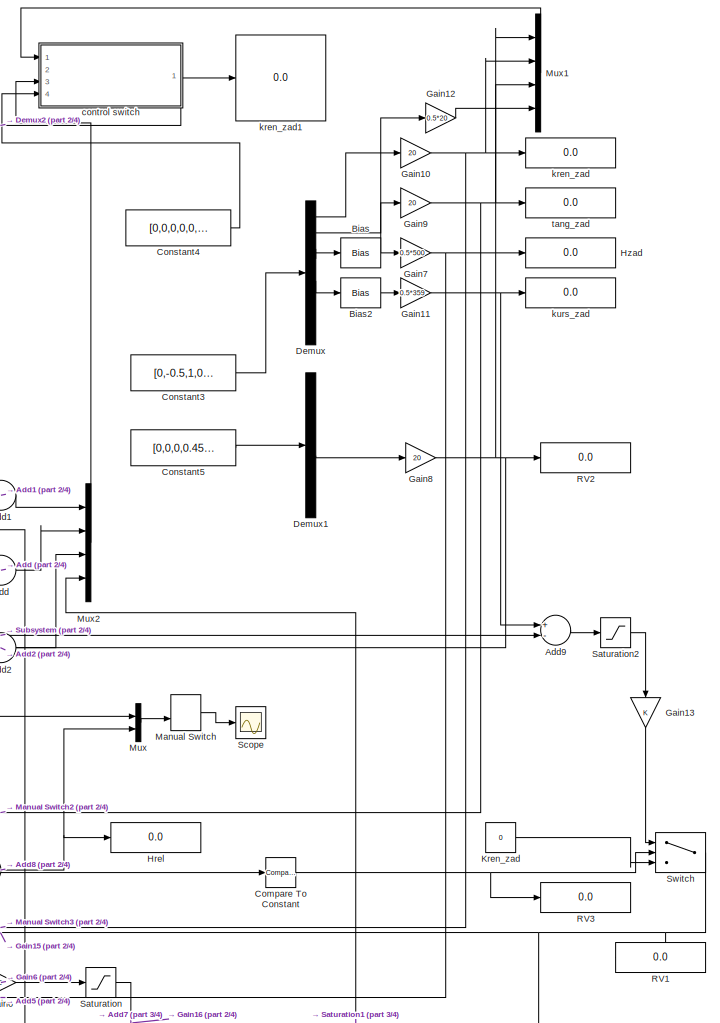
[diagram: root canvas - part 1/4, middle right region]
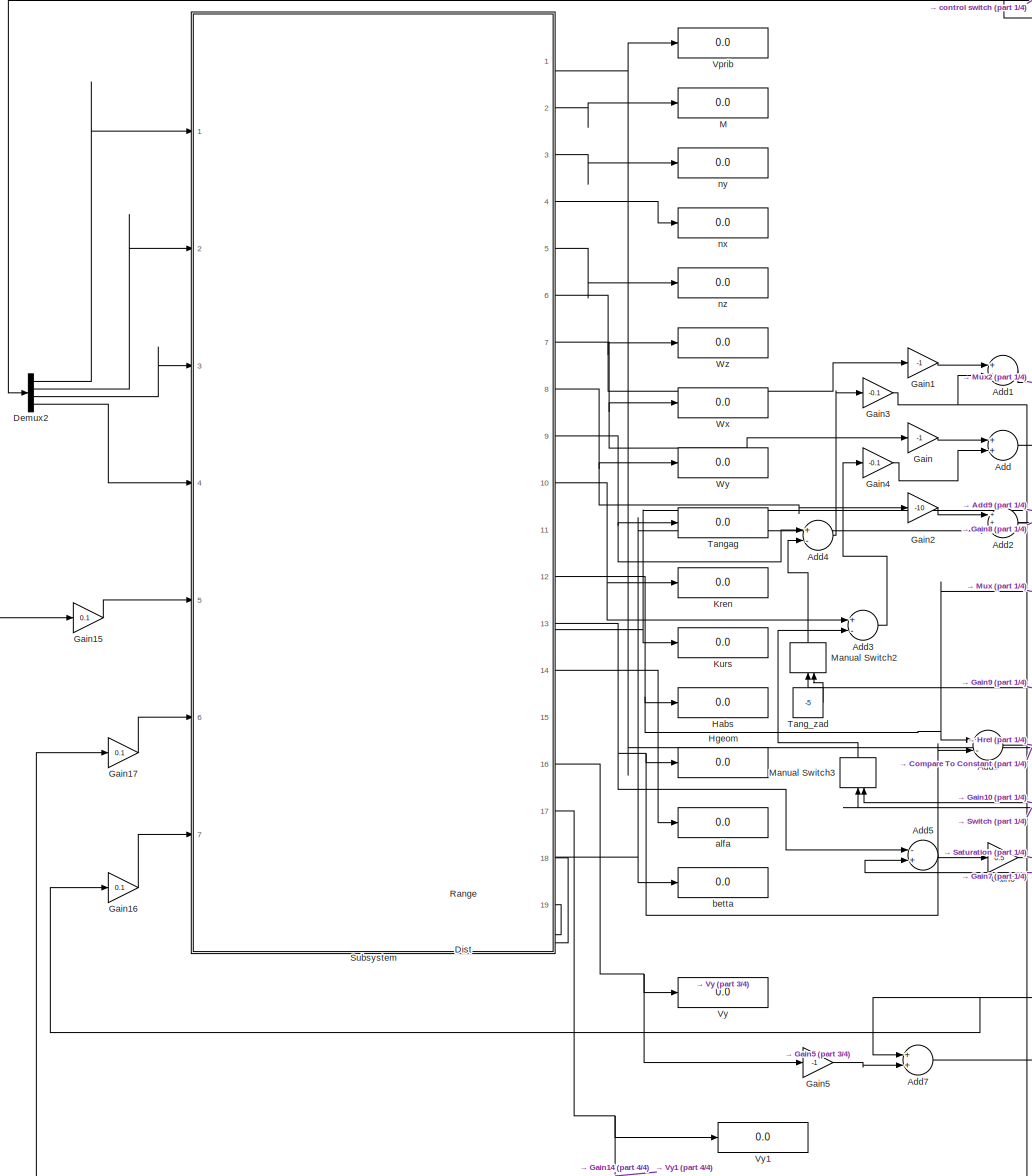
[diagram: root canvas - part 2/4, left side, full height]
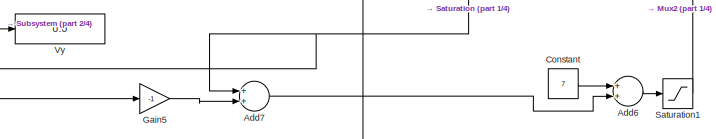
[diagram: root canvas - part 3/4, bottom center region]
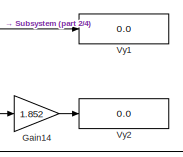
[diagram: root canvas - part 4/4, bottom center region]
MODEL slx_5bebb21199fe
KIND model
BLOCK [Sum] Add
  InputSameDT = off
  OutDataTypeStr = Inherit: Inherit via internal rule
  Ports = [2, 1]
  SaturateOnIntegerOverflow = off
BLOCK [Sum] Add1
  InputSameDT = off
  OutDataTypeStr = Inherit: Inherit via internal rule
  Ports = [2, 1]
  SaturateOnIntegerOverflow = off
BLOCK [Sum] Add2
  InputSameDT = off
  Inputs = ++-
  OutDataTypeStr = Inherit: Inherit via internal rule
  Ports = [3, 1]
  SaturateOnIntegerOverflow = off
BLOCK [Sum] Add3
  InputSameDT = off
  Inputs = +-
  OutDataTypeStr = Inherit: Inherit via internal rule
  Ports = [2, 1]
  SaturateOnIntegerOverflow = off
BLOCK [Sum] Add4
  InputSameDT = off
  Inputs = +-
  OutDataTypeStr = Inherit: Inherit via internal rule
  Ports = [2, 1]
  SaturateOnIntegerOverflow = off
BLOCK [Sum] Add5
  InputSameDT = off
  Inputs = -+
  OutDataTypeStr = Inherit: Inherit via internal rule
  Ports = [2, 1]
  SaturateOnIntegerOverflow = off
BLOCK [Sum] Add6
  InputSameDT = off
  OutDataTypeStr = Inherit: Inherit via internal rule
  Ports = [2, 1]
  SaturateOnIntegerOverflow = off
BLOCK [Sum] Add7
  InputSameDT = off
  OutDataTypeStr = Inherit: Inherit via internal rule
  Ports = [2, 1]
  SaturateOnIntegerOverflow = off
BLOCK [Sum] Add8
  InputSameDT = off
  Inputs = +-
  OutDataTypeStr = Inherit: Inherit via internal rule
  Ports = [2, 1]
  SaturateOnIntegerOverflow = off
BLOCK [Sum] Add9
  InputSameDT = off
  Inputs = +-
  OutDataTypeStr = Inherit: Inherit via internal rule
  Ports = [2, 1]
  SaturateOnIntegerOverflow = off
BLOCK [Bias] Bias
  Bias = 1
  SaturateOnIntegerOverflow = off
BLOCK [Bias] Bias2
  Bias = 1
  SaturateOnIntegerOverflow = off
BLOCK [Reference] Compare To Constant  REF=simulink/Logic and Bit
Operations/Compare
To Constant
  OutDataTypeStr = uint8
  Ports = [1, 1]
  SourceBlock = simulink/Logic and Bit\nOperations/Compare\nTo Constant
  SourceType = Compare To Constant
  ZeroCross = on
  const = 75
  relop = >
BLOCK [Constant] Constant
  Value = 7
BLOCK [Constant] Constant3
  Value = [0,-0.5,1,0,-0.5,0,0,0]
BLOCK [Constant] Constant4
  Value = [0,0,0,0,0,0,0,0,0,0,0,0,0,0,0,0,0,0,0,0,0,0,0,0,0,0,0,0,0,0,0,0,0,0,0,0,0,0,0]
BLOCK [Constant] Constant5
  Value = [0,0,0,0.45,0,0]
BLOCK [Demux] Demux
  DisplayOption = bar
  Outputs = 8
  Ports = [1, 8]
BLOCK [Demux] Demux1
  DisplayOption = bar
  Outputs = 6
  Ports = [1, 6]
BLOCK [Demux] Demux2
  DisplayOption = bar
  Ports = [1, 4]
BLOCK [Display] Dist
  Decimation = 1
  Lockdown = off
  Ports = [1]
BLOCK [Gain] Gain
  Gain = -1
  OutDataTypeStr = Inherit: Inherit via internal rule
  ParamDataTypeStr = Inherit: Inherit via internal rule
  SaturateOnIntegerOverflow = off
BLOCK [Gain] Gain1
  Gain = -1
  OutDataTypeStr = Inherit: Inherit via internal rule
  ParamDataTypeStr = Inherit: Inherit via internal rule
  SaturateOnIntegerOverflow = off
BLOCK [Gain] Gain10
  Gain = 20
  OutDataTypeStr = Inherit: Inherit via internal rule
  ParamDataTypeStr = Inherit: Inherit via internal rule
  SaturateOnIntegerOverflow = off
BLOCK [Gain] Gain11
  Gain = 0.5*359
  OutDataTypeStr = Inherit: Inherit via internal rule
  ParamDataTypeStr = Inherit: Inherit via internal rule
  SaturateOnIntegerOverflow = off
BLOCK [Gain] Gain12
  Gain = 0.5*20
  OutDataTypeStr = Inherit: Inherit via internal rule
  ParamDataTypeStr = Inherit: Inherit via internal rule
  SaturateOnIntegerOverflow = off
BLOCK [Gain] Gain13
  OutDataTypeStr = Inherit: Inherit via internal rule
  ParamDataTypeStr = Inherit: Inherit via internal rule
  SaturateOnIntegerOverflow = off
BLOCK [Gain] Gain14
  Gain = 1.852
  OutDataTypeStr = Inherit: Inherit via internal rule
  ParamDataTypeStr = Inherit: Inherit via internal rule
  SaturateOnIntegerOverflow = off
BLOCK [Gain] Gain15
  Gain = 0.1
  OutDataTypeStr = Inherit: Inherit via internal rule
  ParamDataTypeStr = Inherit: Inherit via internal rule
  SaturateOnIntegerOverflow = off
BLOCK [Gain] Gain16
  Gain = 0.1
  OutDataTypeStr = Inherit: Inherit via internal rule
  ParamDataTypeStr = Inherit: Inherit via internal rule
  SaturateOnIntegerOverflow = off
BLOCK [Gain] Gain17
  Gain = 0.1
  OutDataTypeStr = Inherit: Inherit via internal rule
  ParamDataTypeStr = Inherit: Inherit via internal rule
  SaturateOnIntegerOverflow = off
BLOCK [Gain] Gain2
  Gain = -10
  OutDataTypeStr = Inherit: Inherit via internal rule
  ParamDataTypeStr = Inherit: Inherit via internal rule
  SaturateOnIntegerOverflow = off
BLOCK [Gain] Gain3
  Gain = -0.1
  OutDataTypeStr = Inherit: Inherit via internal rule
  ParamDataTypeStr = Inherit: Inherit via internal rule
  SaturateOnIntegerOverflow = off
BLOCK [Gain] Gain4
  Gain = -0.1
  OutDataTypeStr = Inherit: Inherit via internal rule
  ParamDataTypeStr = Inherit: Inherit via internal rule
  SaturateOnIntegerOverflow = off
BLOCK [Gain] Gain5
  Gain = -1
  OutDataTypeStr = Inherit: Inherit via internal rule
  ParamDataTypeStr = Inherit: Inherit via internal rule
  SaturateOnIntegerOverflow = off
BLOCK [Gain] Gain6
  Gain = 0.5
  OutDataTypeStr = Inherit: Inherit via internal rule
  ParamDataTypeStr = Inherit: Inherit via internal rule
  SaturateOnIntegerOverflow = off
BLOCK [Gain] Gain7
  Gain = 0.5*500
  OutDataTypeStr = Inherit: Inherit via internal rule
  ParamDataTypeStr = Inherit: Inherit via internal rule
  SaturateOnIntegerOverflow = off
BLOCK [Gain] Gain8
  Gain = 20
  OutDataTypeStr = Inherit: Inherit via internal rule
  ParamDataTypeStr = Inherit: Inherit via internal rule
  SaturateOnIntegerOverflow = off
BLOCK [Gain] Gain9
  Gain = 20
  OutDataTypeStr = Inherit: Inherit via internal rule
  ParamDataTypeStr = Inherit: Inherit via internal rule
  SaturateOnIntegerOverflow = off
BLOCK [Display] Habs
  Decimation = 1
  Lockdown = off
  Ports = [1]
BLOCK [Display] Hgeom
  Decimation = 1
  Lockdown = off
  Ports = [1]
BLOCK [Display] Hrel
  Decimation = 1
  Lockdown = off
  Ports = [1]
BLOCK [Display] Kren
  Decimation = 1
  Lockdown = off
  Ports = [1]
BLOCK [Constant] Kren_zad
  Value = 0
BLOCK [Display] Kurs
  Decimation = 1
  Lockdown = off
  Ports = [1]
BLOCK [Display] M
  Decimation = 1
  Lockdown = off
  Ports = [1]
BLOCK [ManualSwitch] Manual Switch
BLOCK [ManualSwitch] Manual Switch2
  CurrentSetting = 0
BLOCK [ManualSwitch] Manual Switch3
BLOCK [Mux] Mux
  DisplayOption = bar
  Inputs = 2
  Ports = [2, 1]
BLOCK [Mux] Mux1
  DisplayOption = bar
  Ports = [4, 1]
BLOCK [Mux] Mux2
  DisplayOption = bar
  Ports = [4, 1]
BLOCK [Display] RV1
  Decimation = 1
  Lockdown = off
  Ports = [1]
BLOCK [Display] RV2
  Decimation = 1
  Lockdown = off
  Ports = [1]
BLOCK [Display] RV3
  Decimation = 1
  Lockdown = off
  Ports = [1]
BLOCK [Display] Range
  Decimation = 1
  Lockdown = off
  Ports = [1]
BLOCK [Saturate] Saturation
  InputPortMap = u0
  LowerLimit = -10
  Ports = [1, 1]
  UpperLimit = 10
BLOCK [Saturate] Saturation1
  InputPortMap = u0
  LowerLimit = 0
  Ports = [1, 1]
  UpperLimit = 18
BLOCK [Saturate] Saturation2
  InputPortMap = u0
  LowerLimit = -30
  Ports = [1, 1]
  UpperLimit = 30
BLOCK [Scope] Scope
  DataFormat = StructureWithTime
  Floating = off
  LimitDataPoints = off
  MaxDataPoints = 500000
  NumInputPorts = 1
  Ports = [1]
  SampleTime = 0
  ShowLegends = off
  TimeRange = 1200
  YMax = 925
  YMin = 575
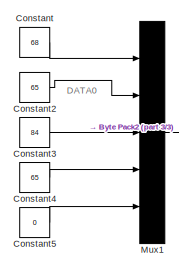
[diagram: Subsystem - part 1/3, top left region]
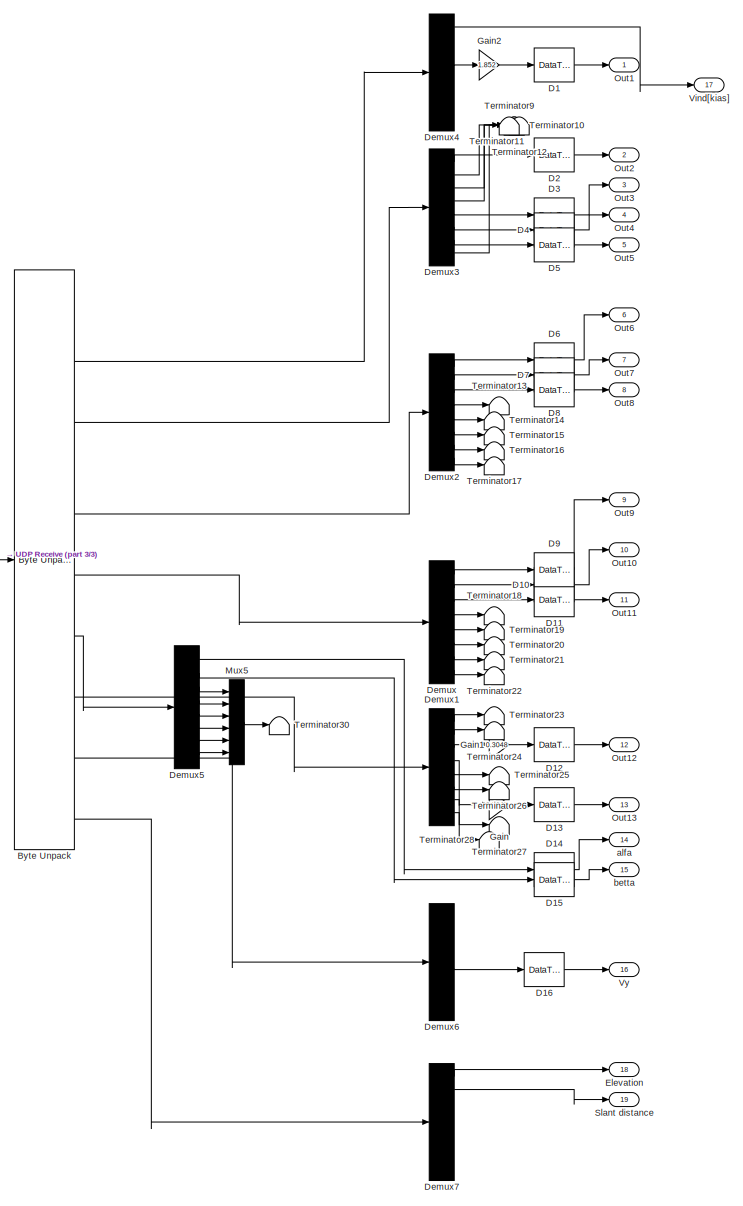
[diagram: Subsystem - part 2/3, right side, full height]
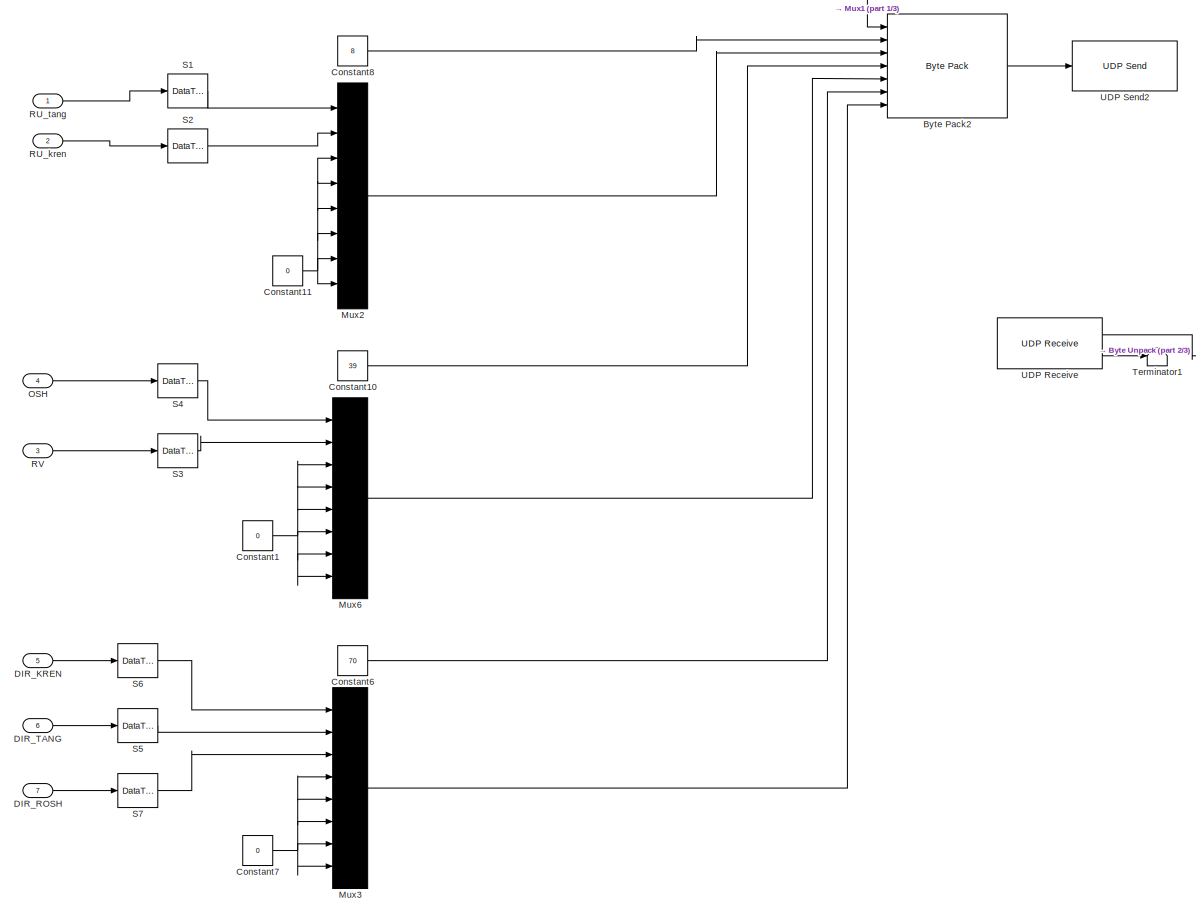
[diagram: Subsystem - part 3/3, middle left region]
BLOCK [SubSystem] Subsystem
  FunctionWithSeparateData = off
  MaskHideContents = off
  MinAlgLoopOccurrences = off
  Opaque = off
  Ports = [7, 19]
  PropExecContextOutsideSubsystem = off
  RTWSystemCode = Auto
  RequestExecContextInheritance = off
BLOCK [Reference] Subsystem/Byte Pack2  REF=etargetslib/Byte Pack
  Ports = [7, 1]
  SourceBlock = etargetslib/Byte Pack
  SourceType = Byte pack
  byteAlign = 1
  datatypes = {'int8','int32','single','int32','single','int32','single'}
BLOCK [Reference] Subsystem/Byte Unpack  REF=etargetslib/Byte Unpack
  Ports = [1, 18]
  SourceBlock = etargetslib/Byte Unpack
  SourceType = Byte Unpack
  byteAlign = 1
  datatypes = {'int8','int32','single','int32','single','int8','int32','single','int32','single','int32','single','int32','single','int32','single','int32','single'}
  dimensions = {[5+3*36],[1],[8],[1],[8],[12*36],[1],[8],[1],[8],[1],[8],[1],[8],[1],[8],[1],[8]}
BLOCK [Constant] Subsystem/Constant
  OutDataTypeStr = int8
  Value = 68
BLOCK [Constant] Subsystem/Constant1
  LockScale = on
  OutDataTypeStr = single
  Value = 0
BLOCK [Constant] Subsystem/Constant10
  LockScale = on
  OutDataTypeStr = int32
  Value = 39
BLOCK [Constant] Subsystem/Constant11
  LockScale = on
  OutDataTypeStr = single
  Value = 0
BLOCK [Constant] Subsystem/Constant2
  LockScale = on
  OutDataTypeStr = int8
  Value = 65
BLOCK [Constant] Subsystem/Constant3
  OutDataTypeStr = int8
  Value = 84
BLOCK [Constant] Subsystem/Constant4
  LockScale = on
  OutDataTypeStr = int8
  Value = 65
BLOCK [Constant] Subsystem/Constant5
  LockScale = on
  OutDataTypeStr = int8
  Value = 0
BLOCK [Constant] Subsystem/Constant6
  LockScale = on
  OutDataTypeStr = int32
  Value = 70
BLOCK [Constant] Subsystem/Constant7
  LockScale = on
  OutDataTypeStr = single
  Value = 0
BLOCK [Constant] Subsystem/Constant8
  LockScale = on
  OutDataTypeStr = int32
  Value = 8
BLOCK [DataTypeConversion] Subsystem/D1
  OutDataTypeStr = double
  RndMeth = Floor
  SaturateOnIntegerOverflow = off
BLOCK [DataTypeConversion] Subsystem/D10
  OutDataTypeStr = double
  RndMeth = Floor
  SaturateOnIntegerOverflow = off
BLOCK [DataTypeConversion] Subsystem/D11
  OutDataTypeStr = double
  RndMeth = Floor
  SaturateOnIntegerOverflow = off
BLOCK [DataTypeConversion] Subsystem/D12
  OutDataTypeStr = double
  RndMeth = Floor
  SaturateOnIntegerOverflow = off
BLOCK [DataTypeConversion] Subsystem/D13
  OutDataTypeStr = double
  RndMeth = Floor
  SaturateOnIntegerOverflow = off
BLOCK [DataTypeConversion] Subsystem/D14
  OutDataTypeStr = double
  RndMeth = Floor
  SaturateOnIntegerOverflow = off
BLOCK [DataTypeConversion] Subsystem/D15
  OutDataTypeStr = double
  RndMeth = Floor
  SaturateOnIntegerOverflow = off
BLOCK [DataTypeConversion] Subsystem/D16
  OutDataTypeStr = double
  RndMeth = Floor
  SaturateOnIntegerOverflow = off
BLOCK [DataTypeConversion] Subsystem/D2
  OutDataTypeStr = double
  RndMeth = Floor
  SaturateOnIntegerOverflow = off
BLOCK [DataTypeConversion] Subsystem/D3
  OutDataTypeStr = double
  RndMeth = Floor
  SaturateOnIntegerOverflow = off
BLOCK [DataTypeConversion] Subsystem/D4
  OutDataTypeStr = double
  RndMeth = Floor
  SaturateOnIntegerOverflow = off
BLOCK [DataTypeConversion] Subsystem/D5
  OutDataTypeStr = double
  RndMeth = Floor
  SaturateOnIntegerOverflow = off
BLOCK [DataTypeConversion] Subsystem/D6
  OutDataTypeStr = double
  RndMeth = Floor
  SaturateOnIntegerOverflow = off
BLOCK [DataTypeConversion] Subsystem/D7
  OutDataTypeStr = double
  RndMeth = Floor
  SaturateOnIntegerOverflow = off
BLOCK [DataTypeConversion] Subsystem/D8
  OutDataTypeStr = double
  RndMeth = Floor
  SaturateOnIntegerOverflow = off
BLOCK [DataTypeConversion] Subsystem/D9
  OutDataTypeStr = double
  RndMeth = Floor
  SaturateOnIntegerOverflow = off
BLOCK [Inport] Subsystem/DIR_KREN
  IconDisplay = Port number
  Port = 5
BLOCK [Inport] Subsystem/DIR_ROSH
  IconDisplay = Port number
  Port = 7
BLOCK [Inport] Subsystem/DIR_TANG
  IconDisplay = Port number
  Port = 6
BLOCK [Demux] Subsystem/Demux
  DisplayOption = bar
  Outputs = 8
  Ports = [1, 8]
BLOCK [Demux] Subsystem/Demux1
  DisplayOption = bar
  Outputs = 8
  Ports = [1, 8]
BLOCK [Demux] Subsystem/Demux2
  DisplayOption = bar
  Outputs = 8
  Ports = [1, 8]
BLOCK [Demux] Subsystem/Demux3
  DisplayOption = bar
  Outputs = 8
  Ports = [1, 8]
BLOCK [Demux] Subsystem/Demux4
  DisplayOption = bar
  Outputs = 8
  Ports = [1, 8]
BLOCK [Demux] Subsystem/Demux5
  DisplayOption = bar
  Outputs = 8
  Ports = [1, 8]
BLOCK [Demux] Subsystem/Demux6
  DisplayOption = bar
  Outputs = 8
  Ports = [1, 8]
BLOCK [Demux] Subsystem/Demux7
  DisplayOption = bar
  Outputs = 8
  Ports = [1, 8]
BLOCK [Outport] Subsystem/Elevation
  IconDisplay = Port number
  Port = 18
BLOCK [Gain] Subsystem/Gain
  Gain = 0.3048
  OutDataTypeStr = Inherit: Inherit via internal rule
  ParamDataTypeStr = Inherit: Inherit via internal rule
  SaturateOnIntegerOverflow = off
BLOCK [Gain] Subsystem/Gain1
  Gain = 0.3048
  OutDataTypeStr = Inherit: Inherit via internal rule
  ParamDataTypeStr = Inherit: Inherit via internal rule
  SaturateOnIntegerOverflow = off
BLOCK [Gain] Subsystem/Gain2
  Gain = 1.852
  OutDataTypeStr = Inherit: Inherit via internal rule
  ParamDataTypeStr = Inherit: Inherit via internal rule
  SaturateOnIntegerOverflow = off
BLOCK [Mux] Subsystem/Mux1
  DisplayOption = bar
  Inputs = 5
  Ports = [5, 1]
BLOCK [Mux] Subsystem/Mux2
  DisplayOption = bar
  Inputs = 8
  Ports = [8, 1]
BLOCK [Mux] Subsystem/Mux3
  DisplayOption = bar
  Inputs = 8
  Ports = [8, 1]
BLOCK [Mux] Subsystem/Mux5
  DisplayOption = bar
  Inputs = 6
  Ports = [6, 1]
BLOCK [Mux] Subsystem/Mux6
  DisplayOption = bar
  Inputs = 8
  Ports = [8, 1]
BLOCK [Inport] Subsystem/OSH
  IconDisplay = Port number
  Port = 4
BLOCK [Outport] Subsystem/Out1
  IconDisplay = Port number
BLOCK [Outport] Subsystem/Out10
  IconDisplay = Port number
  Port = 10
BLOCK [Outport] Subsystem/Out11
  IconDisplay = Port number
  Port = 11
BLOCK [Outport] Subsystem/Out12
  IconDisplay = Port number
  Port = 12
BLOCK [Outport] Subsystem/Out13
  IconDisplay = Port number
  Port = 13
BLOCK [Outport] Subsystem/Out2
  IconDisplay = Port number
  Port = 2
BLOCK [Outport] Subsystem/Out3
  IconDisplay = Port number
  Port = 3
BLOCK [Outport] Subsystem/Out4
  IconDisplay = Port number
  Port = 4
BLOCK [Outport] Subsystem/Out5
  IconDisplay = Port number
  Port = 5
BLOCK [Outport] Subsystem/Out6
  IconDisplay = Port number
  Port = 6
BLOCK [Outport] Subsystem/Out7
  IconDisplay = Port number
  Port = 7
BLOCK [Outport] Subsystem/Out8
  IconDisplay = Port number
  Port = 8
BLOCK [Outport] Subsystem/Out9
  IconDisplay = Port number
  Port = 9
BLOCK [Inport] Subsystem/RU_kren
  IconDisplay = Port number
  Port = 2
BLOCK [Inport] Subsystem/RU_tang
  IconDisplay = Port number
BLOCK [Inport] Subsystem/RV
  IconDisplay = Port number
  Port = 3
BLOCK [DataTypeConversion] Subsystem/S1
  OutDataTypeStr = single
  RndMeth = Floor
  SaturateOnIntegerOverflow = off
BLOCK [DataTypeConversion] Subsystem/S2
  OutDataTypeStr = single
  RndMeth = Floor
  SaturateOnIntegerOverflow = off
BLOCK [DataTypeConversion] Subsystem/S3
  OutDataTypeStr = single
  RndMeth = Floor
  SaturateOnIntegerOverflow = off
BLOCK [DataTypeConversion] Subsystem/S4
  OutDataTypeStr = single
  RndMeth = Floor
  SaturateOnIntegerOverflow = off
BLOCK [DataTypeConversion] Subsystem/S5
  OutDataTypeStr = single
  RndMeth = Floor
  SaturateOnIntegerOverflow = off
BLOCK [DataTypeConversion] Subsystem/S6
  OutDataTypeStr = single
  RndMeth = Floor
  SaturateOnIntegerOverflow = off
BLOCK [DataTypeConversion] Subsystem/S7
  OutDataTypeStr = single
  RndMeth = Floor
  SaturateOnIntegerOverflow = off
BLOCK [Outport] Subsystem/Slant distance
  IconDisplay = Port number
  Port = 19
BLOCK [Terminator] Subsystem/Terminator1
BLOCK [Terminator] Subsystem/Terminator10
BLOCK [Terminator] Subsystem/Terminator11
BLOCK [Terminator] Subsystem/Terminator12
BLOCK [Terminator] Subsystem/Terminator13
BLOCK [Terminator] Subsystem/Terminator14
BLOCK [Terminator] Subsystem/Terminator15
BLOCK [Terminator] Subsystem/Terminator16
BLOCK [Terminator] Subsystem/Terminator17
BLOCK [Terminator] Subsystem/Terminator18
BLOCK [Terminator] Subsystem/Terminator19
BLOCK [Terminator] Subsystem/Terminator20
BLOCK [Terminator] Subsystem/Terminator21
BLOCK [Terminator] Subsystem/Terminator22
BLOCK [Terminator] Subsystem/Terminator23
BLOCK [Terminator] Subsystem/Terminator24
BLOCK [Terminator] Subsystem/Terminator25
BLOCK [Terminator] Subsystem/Terminator26
BLOCK [Terminator] Subsystem/Terminator27
BLOCK [Terminator] Subsystem/Terminator28
BLOCK [Terminator] Subsystem/Terminator30
BLOCK [Terminator] Subsystem/Terminator9
BLOCK [Reference] Subsystem/UDP Receive  REF=dspnetwork/UDP Receive
  Ports = [0, 2]
  SourceBlock = dspnetwork/UDP Receive
  SourceType = UDP Receive
  blockingTime = 0
  dims = 720+5+36+36+36
  isVarSize = off
  localPort = 4444
  localURL = '0.0.0.0'
  recvBufferSize = 8192
  remotePort = -1
  remoteURL = '127.0.0.1'
  sampletime = inf
  showBlockingTime = off
  signalDatatype = uint8
BLOCK [Reference] Subsystem/UDP Send2  REF=dspnetwork/UDP Send
  Ports = [1]
  SourceBlock = dspnetwork/UDP Send
  SourceType = UDP Send
  localPort = 4444
  localPortSource = Automatically determine
  localURL = '0.0.0.0'
  remotePort = 49000
  remoteURL = '127.0.0.1'
  sampletime = -1
  separateLengthPort = 0
BLOCK [Outport] Subsystem/Vind[kias]
  IconDisplay = Port number
  Port = 17
BLOCK [Outport] Subsystem/Vy
  IconDisplay = Port number
  Port = 16
BLOCK [Outport] Subsystem/alfa
  IconDisplay = Port number
  Port = 14
BLOCK [Outport] Subsystem/betta
  IconDisplay = Port number
  Port = 15
BLOCK [Switch] Switch
  InputSameDT = off
  SaturateOnIntegerOverflow = off
  Threshold = 1
BLOCK [Constant] Tang_zad
  Value = -5
BLOCK [Display] Tangag
  Decimation = 1
  Lockdown = off
  Ports = [1]
BLOCK [Display] Vprib
  Decimation = 1
  Lockdown = off
  Ports = [1]
BLOCK [Display] Vy
  Decimation = 1
  Lockdown = off
  Ports = [1]
BLOCK [Display] Vy1
  Decimation = 1
  Lockdown = off
  Ports = [1]
BLOCK [Display] Vy2
  Decimation = 1
  Lockdown = off
  Ports = [1]
BLOCK [Display] Wx
  Decimation = 1
  Lockdown = off
  Ports = [1]
BLOCK [Display] Wy
  Decimation = 1
  Lockdown = off
  Ports = [1]
BLOCK [Display] Wz
  Decimation = 1
  Lockdown = off
  Ports = [1]
BLOCK [Display] alfa
  Decimation = 1
  Lockdown = off
  Ports = [1]
BLOCK [Display] betta
  Decimation = 1
  Lockdown = off
  Ports = [1]
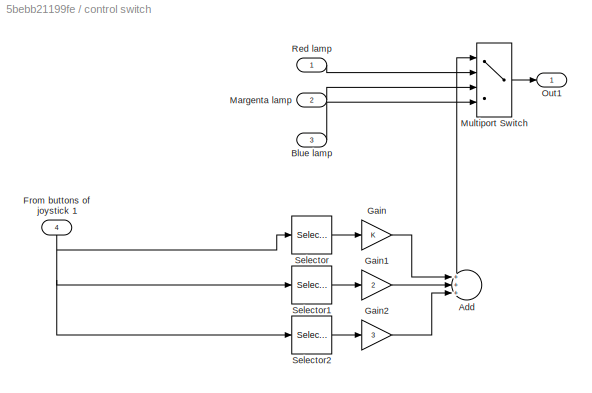
BLOCK [SubSystem] control switch
  FunctionWithSeparateData = off
  MaskHideContents = off
  MinAlgLoopOccurrences = off
  Opaque = off
  Ports = [4, 1]
  PropExecContextOutsideSubsystem = off
  RTWSystemCode = Auto
  RequestExecContextInheritance = off
BLOCK [Sum] control switch/Add
  InputSameDT = off
  Inputs = +++
  OutDataTypeStr = Inherit: Inherit via internal rule
  Ports = [3, 1]
  SaturateOnIntegerOverflow = off
BLOCK [Inport] control switch/Blue lamp
  IconDisplay = Port number
  Port = 3
BLOCK [Inport] control switch/From buttons of joystick 1
  IconDisplay = Port number
  Port = 4
BLOCK [Gain] control switch/Gain
  OutDataTypeStr = Inherit: Inherit via internal rule
  ParamDataTypeStr = Inherit: Inherit via internal rule
  SaturateOnIntegerOverflow = off
BLOCK [Gain] control switch/Gain1
  Gain = 2
  OutDataTypeStr = Inherit: Inherit via internal rule
  ParamDataTypeStr = Inherit: Inherit via internal rule
  SaturateOnIntegerOverflow = off
BLOCK [Gain] control switch/Gain2
  Gain = 3
  OutDataTypeStr = Inherit: Inherit via internal rule
  ParamDataTypeStr = Inherit: Inherit via internal rule
  SaturateOnIntegerOverflow = off
BLOCK [Inport] control switch/Margenta lamp
  IconDisplay = Port number
  Port = 2
BLOCK [MultiPortSwitch] control switch/Multiport Switch
  DiagnosticForDefault = None
  InputSameDT = off
  Ports = [4, 1]
  SaturateOnIntegerOverflow = off
BLOCK [Outport] control switch/Out1
  IconDisplay = Port number
BLOCK [Inport] control switch/Red lamp
  IconDisplay = Port number
BLOCK [Selector] control switch/Selector
  IndexOptions = Index vector (dialog)
  Indices = [28]
  InputPortWidth = 39
  OutputSizes = 1
  Ports = [1, 1]
BLOCK [Selector] control switch/Selector1
  IndexOptions = Index vector (dialog)
  Indices = [29]
  InputPortWidth = 39
  OutputSizes = 1
  Ports = [1, 1]
BLOCK [Selector] control switch/Selector2
  IndexOptions = Index vector (dialog)
  Indices = [30]
  InputPortWidth = 39
  OutputSizes = 1
  Ports = [1, 1]
BLOCK [Display] kren_zad
  Decimation = 1
  Lockdown = off
  Ports = [1]
BLOCK [Display] kren_zad1
  Decimation = 1
  Lockdown = off
  Ports = [1]
BLOCK [Display] kurs_zad
  Decimation = 1
  Lockdown = off
  Ports = [1]
BLOCK [Display] nx
  Decimation = 1
  Lockdown = off
  Ports = [1]
BLOCK [Display] ny
  Decimation = 1
  Lockdown = off
  Ports = [1]
BLOCK [Display] nz
  Decimation = 1
  Lockdown = off
  Ports = [1]
BLOCK [Display] tang_zad
  Decimation = 1
  Lockdown = off
  Ports = [1]
BLOCK [Display] Нzad
  Decimation = 1
  Lockdown = off
  Ports = [1]
ANNOTATION Subsystem: DATA0
LINE Add1:1 -> Mux2:1
LINE Add2:1 -> Mux2:3
LINE Add3:1 -> Gain4:1
LINE Add4:1 -> Gain3:1
LINE Add5:1 -> Gain6:1
LINE Add6:1 -> Saturation1:1
LINE Add7:1 -> Add6:2
NET Add8:1 -> Hrel:1, Mux:2
LINE Add9:1 -> Saturation2:1
LINE Add:1 -> Mux2:2
LINE Bias2:1 -> Gain11:1
NET Bias:1 -> Gain12:1, Gain7:1
NET Compare To Constant:1 -> RV3:1, Switch:2
LINE Constant3:1 -> Demux:1
LINE Constant4:1 -> control switch:4
LINE Constant5:1 -> Demux1:1
LINE Constant:1 -> Add6:1
LINE Demux1:4 -> Gain8:1
LINE Demux2:1 -> Subsystem:1
LINE Demux2:2 -> Subsystem:2
LINE Demux2:3 -> Subsystem:3
LINE Demux2:4 -> Subsystem:4
LINE Demux:1 -> Gain10:1
LINE Demux:2 -> Gain9:1
LINE Demux:3 -> Bias:1
LINE Demux:5 -> Bias2:1
NET Gain10:1 -> Manual Switch3:2, Mux1:2, kren_zad:1
NET Gain11:1 -> Add9:1, kurs_zad:1
LINE Gain12:1 -> Mux1:4
LINE Gain13:1 -> Switch:1
LINE Gain14:1 -> Vy2:1
LINE Gain15:1 -> Subsystem:5
LINE Gain16:1 -> Subsystem:7
LINE Gain17:1 -> Subsystem:6
LINE Gain1:1 -> Add1:1
LINE Gain2:1 -> Add2:1
NET Gain3:1 -> Add1:2, Gain17:1
LINE Gain4:1 -> Add:2
LINE Gain5:1 -> Add7:2
LINE Gain6:1 -> Saturation:1
NET Gain7:1 -> Add5:2, Нzad:1
NET Gain8:1 -> Add2:2, Mux1:3, RV2:1
NET Gain9:1 -> Manual Switch2:1, Mux1:1, tang_zad:1
LINE Gain:1 -> Add:1
LINE Kren_zad:1 -> Switch:3
LINE Manual Switch2:1 -> Add4:2
LINE Manual Switch3:1 -> Add3:2
LINE Manual Switch:1 -> Scope:1
LINE Mux1:1 -> control switch:1
LINE Mux2:1 -> control switch:3
LINE Mux:1 -> Manual Switch:2
LINE Saturation1:1 -> Mux2:4
LINE Saturation2:1 -> Gain13:1
NET Saturation:1 -> Add7:1, Gain16:1
LINE Subsystem/Byte Pack2:1 -> Subsystem/UDP Send2:1
LINE Subsystem/Byte Unpack:10 -> Subsystem/Demux:1
LINE Subsystem/Byte Unpack:12 -> Subsystem/Demux5:1
LINE Subsystem/Byte Unpack:14 -> Subsystem/Demux1:1
LINE Subsystem/Byte Unpack:16 -> Subsystem/Demux6:1
LINE Subsystem/Byte Unpack:18 -> Subsystem/Demux7:1
LINE Subsystem/Byte Unpack:3 -> Subsystem/Demux4:1
LINE Subsystem/Byte Unpack:5 -> Subsystem/Demux3:1
LINE Subsystem/Byte Unpack:8 -> Subsystem/Demux2:1
LINE Subsystem/Constant10:1 -> Subsystem/Byte Pack2:4
NET Subsystem/Constant11:1 -> Subsystem/Mux2:3, Subsystem/Mux2:4, Subsystem/Mux2:5, Subsystem/Mux2:6, Subsystem/Mux2:7, Subsystem/Mux2:8
NET Subsystem/Constant1:1 -> Subsystem/Mux6:3, Subsystem/Mux6:4, Subsystem/Mux6:5, Subsystem/Mux6:6, Subsystem/Mux6:7, Subsystem/Mux6:8
LINE Subsystem/Constant2:1 -> Subsystem/Mux1:2
LINE Subsystem/Constant3:1 -> Subsystem/Mux1:3
LINE Subsystem/Constant4:1 -> Subsystem/Mux1:4
LINE Subsystem/Constant5:1 -> Subsystem/Mux1:5
LINE Subsystem/Constant6:1 -> Subsystem/Byte Pack2:6
NET Subsystem/Constant7:1 -> Subsystem/Mux3:4, Subsystem/Mux3:5, Subsystem/Mux3:6, Subsystem/Mux3:7, Subsystem/Mux3:8
LINE Subsystem/Constant8:1 -> Subsystem/Byte Pack2:2
LINE Subsystem/Constant:1 -> Subsystem/Mux1:1
LINE Subsystem/D10:1 -> Subsystem/Out10:1
LINE Subsystem/D11:1 -> Subsystem/Out11:1
LINE Subsystem/D12:1 -> Subsystem/Out12:1
LINE Subsystem/D13:1 -> Subsystem/Out13:1
LINE Subsystem/D14:1 -> Subsystem/alfa:1
LINE Subsystem/D15:1 -> Subsystem/betta:1
LINE Subsystem/D16:1 -> Subsystem/Vy:1
LINE Subsystem/D1:1 -> Subsystem/Out1:1
LINE Subsystem/D2:1 -> Subsystem/Out2:1
LINE Subsystem/D3:1 -> Subsystem/Out3:1
LINE Subsystem/D4:1 -> Subsystem/Out4:1
LINE Subsystem/D5:1 -> Subsystem/Out5:1
LINE Subsystem/D6:1 -> Subsystem/Out6:1
LINE Subsystem/D7:1 -> Subsystem/Out7:1
LINE Subsystem/D8:1 -> Subsystem/Out8:1
LINE Subsystem/D9:1 -> Subsystem/Out9:1
LINE Subsystem/DIR_KREN:1 -> Subsystem/S6:1
LINE Subsystem/DIR_ROSH:1 -> Subsystem/S7:1
LINE Subsystem/DIR_TANG:1 -> Subsystem/S5:1
LINE Subsystem/Demux1:1 -> Subsystem/Terminator23:1
LINE Subsystem/Demux1:2 -> Subsystem/Terminator24:1
LINE Subsystem/Demux1:3 -> Subsystem/Gain1:1
LINE Subsystem/Demux1:4 -> Subsystem/Gain:1
LINE Subsystem/Demux1:5 -> Subsystem/Terminator25:1
LINE Subsystem/Demux1:6 -> Subsystem/Terminator26:1
LINE Subsystem/Demux1:7 -> Subsystem/Terminator27:1
LINE Subsystem/Demux1:8 -> Subsystem/Terminator28:1
LINE Subsystem/Demux2:1 -> Subsystem/D6:1
LINE Subsystem/Demux2:2 -> Subsystem/D7:1
LINE Subsystem/Demux2:3 -> Subsystem/D8:1
LINE Subsystem/Demux2:4 -> Subsystem/Terminator13:1
LINE Subsystem/Demux2:5 -> Subsystem/Terminator14:1
LINE Subsystem/Demux2:6 -> Subsystem/Terminator15:1
LINE Subsystem/Demux2:7 -> Subsystem/Terminator16:1
LINE Subsystem/Demux2:8 -> Subsystem/Terminator17:1
LINE Subsystem/Demux3:1 -> Subsystem/D2:1
LINE Subsystem/Demux3:2 -> Subsystem/Terminator9:1
LINE Subsystem/Demux3:3 -> Subsystem/Terminator10:1
LINE Subsystem/Demux3:4 -> Subsystem/Terminator11:1
LINE Subsystem/Demux3:5 -> Subsystem/D3:1
LINE Subsystem/Demux3:6 -> Subsystem/D4:1
LINE Subsystem/Demux3:7 -> Subsystem/D5:1
LINE Subsystem/Demux3:8 -> Subsystem/Terminator12:1
LINE Subsystem/Demux4:1 -> Subsystem/Vind[kias]:1
LINE Subsystem/Demux4:4 -> Subsystem/Gain2:1
LINE Subsystem/Demux5:1 -> Subsystem/D14:1
LINE Subsystem/Demux5:2 -> Subsystem/D15:1
LINE Subsystem/Demux5:3 -> Subsystem/Mux5:1
LINE Subsystem/Demux5:4 -> Subsystem/Mux5:2
LINE Subsystem/Demux5:5 -> Subsystem/Mux5:3
LINE Subsystem/Demux5:6 -> Subsystem/Mux5:4
LINE Subsystem/Demux5:7 -> Subsystem/Mux5:5
LINE Subsystem/Demux5:8 -> Subsystem/Mux5:6
LINE Subsystem/Demux6:5 -> Subsystem/D16:1
LINE Subsystem/Demux7:1 -> Subsystem/Elevation:1
LINE Subsystem/Demux7:2 -> Subsystem/Slant distance:1
LINE Subsystem/Demux:1 -> Subsystem/D9:1
LINE Subsystem/Demux:2 -> Subsystem/D10:1
LINE Subsystem/Demux:3 -> Subsystem/D11:1
LINE Subsystem/Demux:4 -> Subsystem/Terminator18:1
LINE Subsystem/Demux:5 -> Subsystem/Terminator19:1
LINE Subsystem/Demux:6 -> Subsystem/Terminator20:1
LINE Subsystem/Demux:7 -> Subsystem/Terminator21:1
LINE Subsystem/Demux:8 -> Subsystem/Terminator22:1
LINE Subsystem/Gain1:1 -> Subsystem/D12:1
LINE Subsystem/Gain2:1 -> Subsystem/D1:1
LINE Subsystem/Gain:1 -> Subsystem/D13:1
LINE Subsystem/Mux1:1 -> Subsystem/Byte Pack2:1
LINE Subsystem/Mux2:1 -> Subsystem/Byte Pack2:3
LINE Subsystem/Mux3:1 -> Subsystem/Byte Pack2:7
LINE Subsystem/Mux5:1 -> Subsystem/Terminator30:1
LINE Subsystem/Mux6:1 -> Subsystem/Byte Pack2:5
LINE Subsystem/OSH:1 -> Subsystem/S4:1
LINE Subsystem/RU_kren:1 -> Subsystem/S2:1
LINE Subsystem/RU_tang:1 -> Subsystem/S1:1
LINE Subsystem/RV:1 -> Subsystem/S3:1
LINE Subsystem/S1:1 -> Subsystem/Mux2:1
LINE Subsystem/S2:1 -> Subsystem/Mux2:2
LINE Subsystem/S3:1 -> Subsystem/Mux6:2
LINE Subsystem/S4:1 -> Subsystem/Mux6:1
LINE Subsystem/S5:1 -> Subsystem/Mux3:2
LINE Subsystem/S6:1 -> Subsystem/Mux3:1
LINE Subsystem/S7:1 -> Subsystem/Mux3:3
LINE Subsystem/UDP Receive:1 -> Subsystem/Byte Unpack:1
LINE Subsystem/UDP Receive:2 -> Subsystem/Terminator1:1
NET Subsystem:1 -> Compare To Constant:1, Vprib:1
NET Subsystem:10 -> Add3:1, Kren:1
NET Subsystem:11 -> Add9:2, Kurs:1
NET Subsystem:12 -> Add8:1, Habs:1, Mux:1
NET Subsystem:13 -> Add5:1, Add8:2, Hgeom:1
LINE Subsystem:14 -> alfa:1
NET Subsystem:15 -> Add2:3, betta:1
NET Subsystem:16 -> Gain5:1, Vy:1
NET Subsystem:17 -> Gain14:1, Vy1:1
LINE Subsystem:18 -> Range:1
LINE Subsystem:19 -> Dist:1
LINE Subsystem:2 -> M:1
LINE Subsystem:3 -> ny:1
LINE Subsystem:4 -> nx:1
LINE Subsystem:5 -> nz:1
NET Subsystem:6 -> Gain1:1, Wz:1
NET Subsystem:7 -> Gain:1, Wx:1
NET Subsystem:8 -> Gain2:1, Wy:1
NET Subsystem:9 -> Add4:1, Tangag:1
NET Switch:1 -> Gain15:1, Manual Switch3:1, RV1:1
LINE Tang_zad:1 -> Manual Switch2:2
LINE control switch/Add:1 -> control switch/Multiport Switch:1
LINE control switch/Blue lamp:1 -> control switch/Multiport Switch:4
NET control switch/From buttons of joystick 1:1 -> control switch/Selector1:1, control switch/Selector2:1, control switch/Selector:1
LINE control switch/Gain1:1 -> control switch/Add:2
LINE control switch/Gain2:1 -> control switch/Add:3
LINE control switch/Gain:1 -> control switch/Add:1
LINE control switch/Margenta lamp:1 -> control switch/Multiport Switch:3
LINE control switch/Multiport Switch:1 -> control switch/Out1:1
LINE control switch/Red lamp:1 -> control switch/Multiport Switch:2
LINE control switch/Selector1:1 -> control switch/Gain1:1
LINE control switch/Selector2:1 -> control switch/Gain2:1
LINE control switch/Selector:1 -> control switch/Gain:1
NET control switch:1 -> Demux2:1, kren_zad1:1
note: NET lines group one-source signal fan-out (src -> all destinations, sorted); 1:1 wires keep LINE
